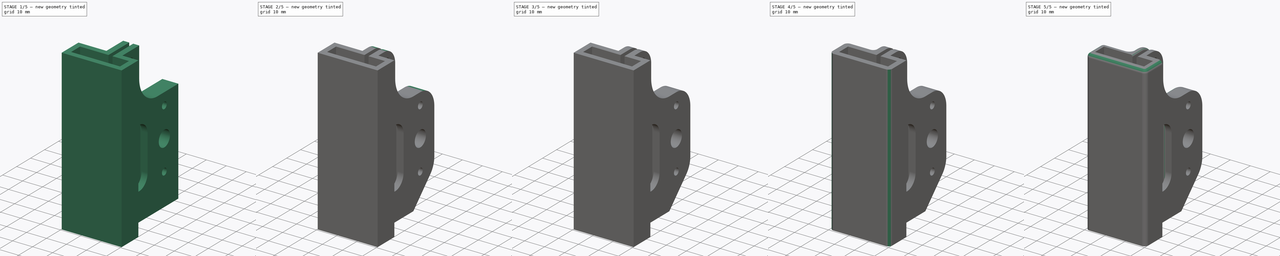
[diagram: build sequence overview — one tinted view per stage of 5, left to right]
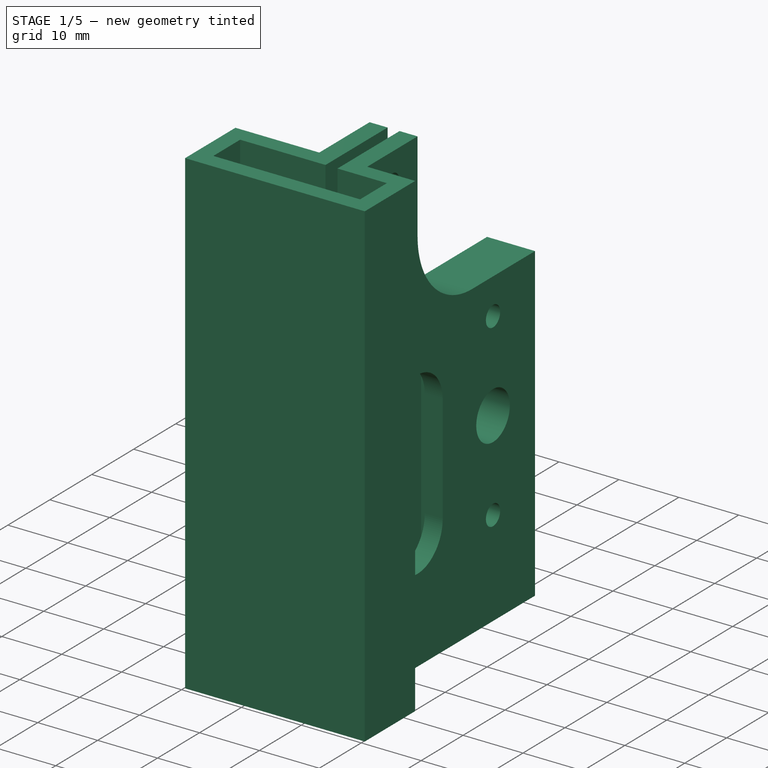
[diagram: stage 1 of 5 — iso view after this stage's code; geometry added in this stage tinted green]
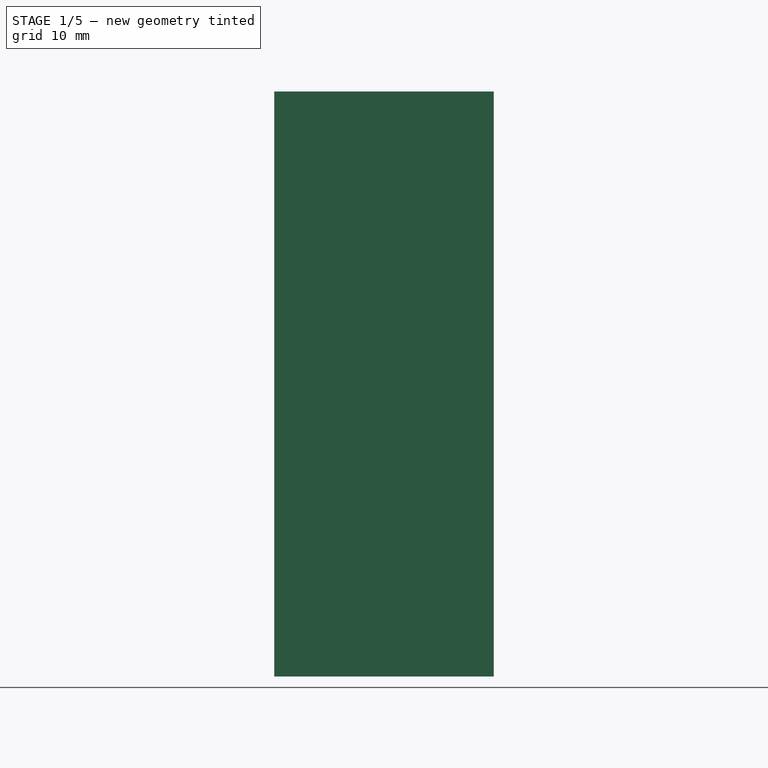
[diagram: stage 1 of 5 — front view after this stage's code; geometry added in this stage tinted green]
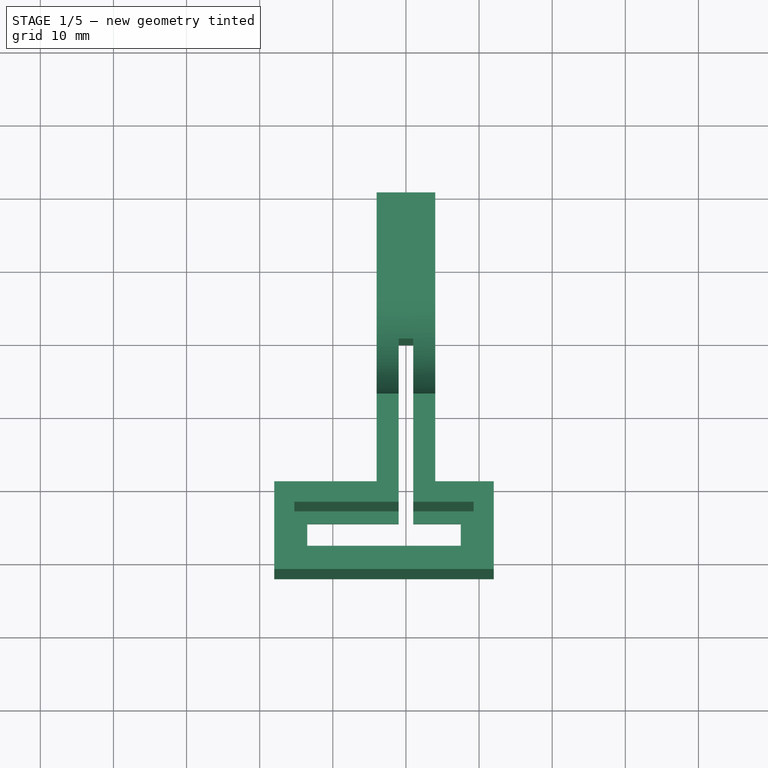
[diagram: stage 1 of 5 — top view after this stage's code; geometry added in this stage tinted green]
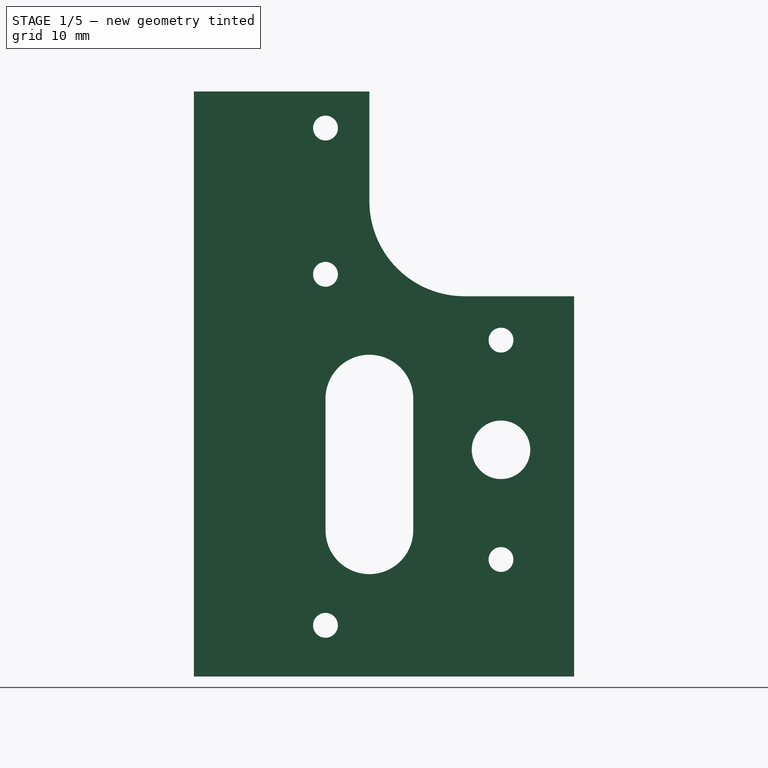
[diagram: stage 1 of 5 — right view after this stage's code; geometry added in this stage tinted green]
FCSTD DOCUMENT  (FreeCAD 0.16R6706 (Git))
Label: LowerKneeV2
License: All rights reserved
LicenseURL: http://en.wikipedia.org/wiki/All_rights_reserved
objects: PartDesign::Fillet×13, PartDesign::Chamfer×6, Sketcher::SketchObject×5, PartDesign::Pocket×4, PartDesign::Pad×1
note: 34 computed .brp shape members not serialized (recipe doc carries the construction recipe); baked Part::Feature solids carry a one-line shape summary decoded from their .brp

FEATURE [Sketcher::SketchObject] Sketch
  sketch-geometry (22):
    g0: LineSegment [constr] StartX=1 StartY=-2.9 StartZ=0 EndX=1 EndY=14 EndZ=0
    g1: LineSegment [constr] StartX=1 StartY=14 StartZ=0 EndX=-1 EndY=14 EndZ=0
    g2: LineSegment [constr] StartX=-1 StartY=14 StartZ=0 EndX=-1 EndY=-2.9 EndZ=0
    g3: LineSegment [constr] StartX=-1 StartY=-2.9 StartZ=0 EndX=-15.2 EndY=-2.9 EndZ=0
    g4: LineSegment [constr] StartX=-15.2 StartY=-2.9 StartZ=0 EndX=-15.2 EndY=-9.1 EndZ=0
    g5: LineSegment [constr] StartX=-15.2 StartY=-9.1 StartZ=0 EndX=9.2 EndY=-9.1 EndZ=0
    g6: LineSegment [constr] StartX=9.2 StartY=-9.1 StartZ=0 EndX=9.2 EndY=-2.9 EndZ=0
    g7: LineSegment [constr] StartX=9.2 StartY=-2.9 StartZ=0 EndX=1 EndY=-2.9 EndZ=0
    g8: LineSegment StartX=-4 StartY=0 StartZ=0 EndX=-4 EndY=40 EndZ=0
    g9: LineSegment StartX=4 StartY=18 StartZ=0 EndX=4 EndY=0 EndZ=0
    g10: LineSegment StartX=4 StartY=0 StartZ=0 EndX=12 EndY=0 EndZ=0
    g11: LineSegment StartX=12 StartY=0 StartZ=0 EndX=12 EndY=-12 EndZ=0
    g12: LineSegment StartX=12 StartY=-12 StartZ=0 EndX=-18 EndY=-12 EndZ=0
    g13: LineSegment StartX=-18 StartY=-12 StartZ=0 EndX=-18 EndY=0 EndZ=0
    g14: LineSegment StartX=-18 StartY=0 StartZ=0 EndX=-4 EndY=0 EndZ=0
    g15: LineSegment StartX=4 StartY=18 StartZ=0 EndX=4 EndY=40 EndZ=0
    g16: LineSegment StartX=4 StartY=40 StartZ=0 EndX=-4 EndY=40 EndZ=0
    g17: LineSegment [constr] StartX=-1 StartY=-2.9 StartZ=0 EndX=1 EndY=-2.9 EndZ=0
    g18: LineSegment [constr] StartX=4 StartY=0 StartZ=0 EndX=-4 EndY=0 EndZ=0
    g19: GeomPoint [constr] X=-3 Y=-6 Z=0
    g20: LineSegment [constr] StartX=-4 StartY=30 StartZ=0 EndX=4 EndY=30 EndZ=0
    g21: LineSegment [constr] StartX=-4 StartY=6 StartZ=0 EndX=4 EndY=6 EndZ=0
  constraints (67):
    c: Vertical(g0)
    c: Coincident(g0,g1)
    c: Horizontal(g1)
    c: Coincident(g1,g2)
    c: Vertical(g2)
    c: Coincident(g2,g3)
    c: Coincident(g3,g4)
    c: Vertical(g4)
    c: Coincident(g4,g5)
    c: Horizontal(g5)
    c: Coincident(g5,g6)
    c: Vertical(g6)
    c: Coincident(g6,g7)
    c: Coincident(g7,g0)
    c: Horizontal(g7)
    c: Horizontal(g3)
    c: Vertical(g8)
    c: Vertical(g9)
    c: Coincident(g9,g10)
    c: Horizontal(g10)
    c: Coincident(g10,g11)
    c: Vertical(g11)
    c: Coincident(g11,g12)
    c: Horizontal(g12)
    c: Coincident(g12,g13)
    c: Vertical(g13)
    c: Coincident(g13,g14)
    c: Horizontal(g14)
    c: Coincident(g8,g14)
    c: Vertical(g15)
    c: Coincident(g15,g16)
    c: Horizontal(g16)
    c: Coincident(g16,g8)
    c: Coincident(g17,g0)
    c: Horizontal(g17)
    c: Coincident(g18,g9)
    c: Coincident(g18,g8)
    c: Horizontal(g18)
    c: DistanceY(g11,g10) = 12
    c: DistanceX(g4,g5) = 24.4
    c: Coincident(g2,g17)
    c: Symmetric(g4,g6,g19)
    c: Symmetric(g12,g10,g19)
    c: DistanceY(g4,g3) = 6.2
    c: DistanceX(g2,g0) = 2
    c: DistanceX(g12,g11) = 30
    c: Symmetric(g2,g0,g-2)
    c: Symmetric(g8,g9,g-2)
    c: DistanceY(g0,g9) = 4
    c: DistanceX(g0,g9) = 3
    c: PointOnObject(g20,g8)
    c: Horizontal(g20)
    c: DistanceY(g8,g20) = 30
    c: PointOnObject(g13,g-1)
    c: DistanceY(g20,g8) = 10
    c: PointOnObject(g21,g8)
    c: Horizontal(g21)
    c: DistanceY(g8,g21) = 6
    c: DistanceY(g21,g1) = 8
    c: DistanceX(g8,g15) = 8
    c: PointOnObject(g20,g15)
    c: DistanceX(g13,g8) = 14
    c: PointOnObject(g21,g9)
    c: DistanceY(g9,g20) = 12
    c: DistanceX(g8,g9) = 8
    c: Coincident(g15,g9)
    c: DistanceX(g9,g10) = 8
FEATURE [PartDesign::Pad] Pad
  Length = 80
  Length2 = 100
  Sketch = -> Sketch
  Type = 0
FEATURE [Sketcher::SketchObject] Sketch001  label="RodHole"
  Placement = pos=(0,0,80) rot=(0,0,1;0rad)
  Support = -> Pad [Face11]
  sketch-geometry (22):
    g0: LineSegment StartX=1 StartY=-2.8 StartZ=0 EndX=1 EndY=20 EndZ=0
    g1: LineSegment StartX=1 StartY=20 StartZ=0 EndX=-1 EndY=20 EndZ=0
    g2: LineSegment StartX=-1 StartY=20 StartZ=0 EndX=-1 EndY=-2.8 EndZ=0
    g3: LineSegment StartX=-1 StartY=-2.8 StartZ=0 EndX=-15.25 EndY=-2.8 EndZ=0
    g4: LineSegment StartX=-15.25 StartY=-2.8 StartZ=0 EndX=-15.25 EndY=-9.2 EndZ=0
    g5: LineSegment StartX=-15.25 StartY=-9.2 StartZ=0 EndX=9.25 EndY=-9.2 EndZ=0
    g6: LineSegment StartX=9.25 StartY=-9.2 StartZ=0 EndX=9.25 EndY=-2.8 EndZ=0
    g7: LineSegment StartX=9.25 StartY=-2.8 StartZ=0 EndX=1 EndY=-2.8 EndZ=0
    g8: LineSegment [constr] StartX=-4 StartY=0 StartZ=0 EndX=-4 EndY=40 EndZ=0
    g9: LineSegment [constr] StartX=4 StartY=24 StartZ=0 EndX=4 EndY=0 EndZ=0
    g10: LineSegment [constr] StartX=4 StartY=0 StartZ=0 EndX=12 EndY=0 EndZ=0
    g11: LineSegment [constr] StartX=12 StartY=0 StartZ=0 EndX=12 EndY=-12 EndZ=0
    g12: LineSegment [constr] StartX=12 StartY=-12 StartZ=0 EndX=-18 EndY=-12 EndZ=0
    g13: LineSegment [constr] StartX=-18 StartY=-12 StartZ=0 EndX=-18 EndY=0 EndZ=0
    g14: LineSegment [constr] StartX=-18 StartY=0 StartZ=0 EndX=-4 EndY=0 EndZ=0
    g15: LineSegment [constr] StartX=4 StartY=24 StartZ=0 EndX=4 EndY=40 EndZ=0
    g16: LineSegment [constr] StartX=4 StartY=40 StartZ=0 EndX=-4 EndY=40 EndZ=0
    g17: LineSegment [constr] StartX=-1 StartY=-2.8 StartZ=0 EndX=1 EndY=-2.8 EndZ=0
    g18: LineSegment [constr] StartX=4 StartY=0 StartZ=0 EndX=-4 EndY=0 EndZ=0
    g19: GeomPoint [constr] X=-3 Y=-6 Z=0
    g20: LineSegment [constr] StartX=-4 StartY=30 StartZ=0 EndX=4 EndY=30 EndZ=0
    g21: LineSegment [constr] StartX=-4 StartY=6 StartZ=0 EndX=4 EndY=6 EndZ=0
  constraints (67):
    c: Vertical(g0)
    c: Coincident(g0,g1)
    c: Horizontal(g1)
    c: Coincident(g1,g2)
    c: Vertical(g2)
    c: Coincident(g2,g3)
    c: Coincident(g3,g4)
    c: Vertical(g4)
    c: Coincident(g4,g5)
    c: Horizontal(g5)
    c: Coincident(g5,g6)
    c: Vertical(g6)
    c: Coincident(g6,g7)
    c: Coincident(g7,g0)
    c: Horizontal(g7)
    c: Horizontal(g3)
    c: Vertical(g8)
    c: Vertical(g9)
    c: Coincident(g9,g10)
    c: Horizontal(g10)
    c: Coincident(g10,g11)
    c: Vertical(g11)
    c: Coincident(g11,g12)
    c: Horizontal(g12)
    c: Coincident(g12,g13)
    c: Vertical(g13)
    c: Coincident(g13,g14)
    c: Horizontal(g14)
    c: Coincident(g8,g14)
    c: Vertical(g15)
    c: Coincident(g15,g16)
    c: Horizontal(g16)
    c: Coincident(g16,g8)
    c: Coincident(g17,g0)
    c: Horizontal(g17)
    c: Coincident(g18,g9)
    c: Coincident(g18,g8)
    c: Horizontal(g18)
    c: DistanceY(g11,g10) = 12
    c: DistanceX(g4,g5) = 24.5
    c: Coincident(g2,g17)
    c: Symmetric(g4,g6,g19)
    c: Symmetric(g12,g10,g19)
    c: DistanceY(g4,g3) = 6.4
    c: DistanceX(g2,g0) = 2
    c: DistanceX(g12,g11) = 30
    c: Symmetric(g2,g0,g-2)
    c: Symmetric(g8,g9,g-2)
    c: DistanceY(g0,g9) = 4
    c: DistanceX(g0,g9) = 3
    c: PointOnObject(g20,g8)
    c: Horizontal(g20)
    c: DistanceY(g8,g20) = 30
    c: PointOnObject(g13,g-1)
    c: DistanceY(g20,g8) = 10
    c: PointOnObject(g21,g8)
    c: Horizontal(g21)
    c: DistanceY(g8,g21) = 6
    c: DistanceY(g21,g1) = 14
    c: DistanceX(g8,g15) = 8
    c: PointOnObject(g20,g15)
    c: DistanceY(g19,g-1) = 6
    c: DistanceX(g-1,g19) = -3
    c: DistanceX(g13,g8) = 14
    c: DistanceX(g9,g10) = 8
    c: Coincident(g15,g9)
    c: PointOnObject(g21,g9)
FEATURE [PartDesign::Pocket] Pocket
  Length = 76
  Sketch = -> Sketch001
  Type = 0
FEATURE [Sketcher::SketchObject] Sketch002  label="MountingHoles"
  Placement = pos=(-4,0,0) rot=(0.57735,-0.57735,-0.57735;2.0944rad)
  Support = -> Pocket [Face11]
  sketch-geometry (11):
    g0: LineSegment [constr] StartX=-6 StartY=80 StartZ=0 EndX=-6 EndY=0 EndZ=0
    g1: Circle CenterX=-6 CenterY=7 CenterZ=0 NormalX=0 NormalY=0 NormalZ=1 Radius=1.7
    g2: Circle CenterX=-6 CenterY=55 CenterZ=0 NormalX=0 NormalY=0 NormalZ=1 Radius=1.7
    g3: Circle CenterX=-6 CenterY=75 CenterZ=0 NormalX=0 NormalY=0 NormalZ=1 Radius=1.7
    g4: LineSegment [constr] StartX=0 StartY=31 StartZ=0 EndX=-30 EndY=31 EndZ=0
    g5: LineSegment [constr] StartX=-30 StartY=46 StartZ=0 EndX=-30 EndY=16 EndZ=0
    g6: Circle CenterX=-30 CenterY=46 CenterZ=0 NormalX=0 NormalY=0 NormalZ=1 Radius=1.7
    g7: Circle CenterX=-30 CenterY=16 CenterZ=0 NormalX=0 NormalY=0 NormalZ=1 Radius=1.7
    g8: LineSegment [constr] StartX=-30 StartY=46 StartZ=0 EndX=-30 EndY=71 EndZ=0
    g9: Circle [constr] CenterX=-30 CenterY=71 CenterZ=0 NormalX=0 NormalY=0 NormalZ=1 Radius=3.2
    g10: Circle CenterX=-30 CenterY=31 CenterZ=0 NormalX=0 NormalY=0 NormalZ=1 Radius=4
  constraints (33):
    c: PointOnObject(g0,g-1)
    c: Vertical(g0)
    c: DistanceX(g0,g-1) = 6
    c: DistanceY(g0,g0) = 80
    c: PointOnObject(g1,g0)
    c: PointOnObject(g2,g0)
    c: PointOnObject(g3,g0)
    c: Radius(g1) = 1.7
    c: Equal(g1,g2)
    c: Equal(g1,g3)
    c: DistanceY(g2,g3) = 20
    c: PointOnObject(g4,g-2)
    c: Horizontal(g4)
    c: Symmetric(g1,g2,g4)
    c: DistanceY(g1,g2) = 48
    c: DistanceY(g-1,g1) = 7
    c: DistanceX(g4,g4) = 30
    c: Vertical(g5)
    c: PointOnObject(g4,g5)
    c: DistanceY(g5,g5) = 30
    c: Symmetric(g5,g5,g4)
    c: Coincident(g6,g5)
    c: Coincident(g7,g5)
    c: Equal(g2,g6)
    c: Equal(g6,g7)
    c: Vertical(g8)
    c: Coincident(g9,g8)
    c: Coincident(g8,g5)
    c: DistanceY(g4,g8) = 40
    c: Radius(g9) = 3.2
    c: Coincident(g10,g4)
    c: Radius(g10) = 4
    c: DistanceY(g-1,g8) = 71
FEATURE [PartDesign::Pocket] Pocket001
  Length = 5
  Sketch = -> Sketch002
  Type = 1
FEATURE [Sketcher::SketchObject] Sketch003
  Placement = pos=(0,0,0) rot=(1,0,0;3.14159rad)
  Support = -> Pocket001 [Face3]
  sketch-geometry (10):
    g0: LineSegment StartX=-13.5 StartY=7.5 StartZ=0 EndX=7.5 EndY=7.5 EndZ=0
    g1: LineSegment StartX=7.5 StartY=7.5 StartZ=0 EndX=7.5 EndY=4.5 EndZ=0
    g2: LineSegment StartX=7.5 StartY=4.5 StartZ=0 EndX=1 EndY=4.5 EndZ=0
    g3: LineSegment StartX=-13.5 StartY=4.5 StartZ=0 EndX=-13.5 EndY=7.5 EndZ=0
    g4: GeomPoint [constr] X=-3 Y=6 Z=0
    g5: LineSegment [constr] StartX=-1 StartY=4.5 StartZ=0 EndX=1 EndY=4.5 EndZ=0
    g6: LineSegment StartX=1 StartY=4.5 StartZ=0 EndX=1 EndY=-20 EndZ=0
    g7: LineSegment StartX=1 StartY=-20 StartZ=0 EndX=-1 EndY=-20 EndZ=0
    g8: LineSegment StartX=-1 StartY=-20 StartZ=0 EndX=-1 EndY=4.5 EndZ=0
    g9: LineSegment StartX=-1 StartY=4.5 StartZ=0 EndX=-13.5 EndY=4.5 EndZ=0
  constraints (28):
    c: Coincident(g0,g1)
    c: Coincident(g1,g2)
    c: Coincident(g9,g3)
    c: Coincident(g3,g0)
    c: Horizontal(g0)
    c: Horizontal(g2)
    c: Vertical(g1)
    c: Vertical(g3)
    c: DistanceY(g1,g0) = 3
    c: DistanceX(g0,g0) = 21
    c: DistanceX(g-1,g4) = -3
    c: DistanceY(g-1,g4) = 6
    c: Symmetric(g9,g0,g4)
    c: Coincident(g5,g6)
    c: Coincident(g6,g7)
    c: Coincident(g7,g8)
    c: Coincident(g8,g5)
    c: Horizontal(g5)
    c: Horizontal(g7)
    c: Vertical(g6)
    c: Vertical(g8)
    c: PointOnObject(g2,g6)
    c: PointOnObject(g9,g8)
    c: Tangent(g2,g9)
    c: Coincident(g2,g5)
    c: Symmetric(g6,g7,g-2)
    c: DistanceX(g7,g6) = 2
    c: DistanceY(g6,g-1) = 20
FEATURE [PartDesign::Pocket] Pocket002
  Length = 5
  Sketch = -> Sketch003
  Type = 0
FEATURE [Sketcher::SketchObject] Sketch004
  Placement = pos=(4,0,0) rot=(0.57735,0.57735,0.57735;2.0944rad)
  Support = -> Pocket002 [Face1]
  sketch-geometry (9):
    g0: LineSegment StartX=12 StartY=85 StartZ=0 EndX=45 EndY=85 EndZ=0
    g1: LineSegment StartX=45 StartY=85 StartZ=0 EndX=45 EndY=52 EndZ=0
    g2: LineSegment StartX=45 StartY=52 StartZ=0 EndX=25 EndY=52 EndZ=0
    g3: LineSegment StartX=12 StartY=65 StartZ=0 EndX=12 EndY=85 EndZ=0
    g4: ArcOfCircle CenterX=25 CenterY=65 CenterZ=0 NormalX=0 NormalY=0 NormalZ=1 Radius=13 StartAngle=3.14159 EndAngle=4.71239
    g5: ArcOfCircle CenterX=12 CenterY=38 CenterZ=0 NormalX=0 NormalY=0 NormalZ=1 Radius=6 StartAngle=-1e-12 EndAngle=3.14159
    g6: ArcOfCircle CenterX=12 CenterY=20 CenterZ=0 NormalX=0 NormalY=0 NormalZ=1 Radius=6 StartAngle=3.14159 EndAngle=6.28319
    g7: LineSegment StartX=6 StartY=38 StartZ=0 EndX=6 EndY=20 EndZ=0
    g8: LineSegment StartX=18 StartY=38 StartZ=0 EndX=18 EndY=20 EndZ=0
  constraints (24):
    c: Coincident(g0,g1)
    c: Coincident(g1,g2)
    c: Coincident(g3,g0)
    c: Horizontal(g0)
    c: Horizontal(g2)
    c: Vertical(g1)
    c: Vertical(g3)
    c: Tangent(g3,g4) = 1.5708
    c: Tangent(g2,g4) = 1.5708
    c: DistanceX(g-1,g3) = 12
    c: DistanceY(g-1,g3) = 65
    c: DistanceY(g-1,g2) = 52
    c: DistanceX(g-1,g1) = 45
    c: DistanceY(g-1,g0) = 85
    c: Tangent(g5,g8) = 1.5708
    c: Tangent(g5,g7) = -1.5708
    c: Tangent(g7,g6) = -1.5708
    c: Tangent(g8,g6) = 1.5708
    c: Vertical(g7)
    c: Equal(g5,g6)
    c: DistanceX(g6,g6) = 12
    c: DistanceY(g6,g5) = 18
    c: DistanceY(g-1,g6) = 20
    c: DistanceX(g-1,g6) = 12
FEATURE [PartDesign::Pocket] Pocket003
  Length = 5
  Sketch = -> Sketch004
  Type = 1
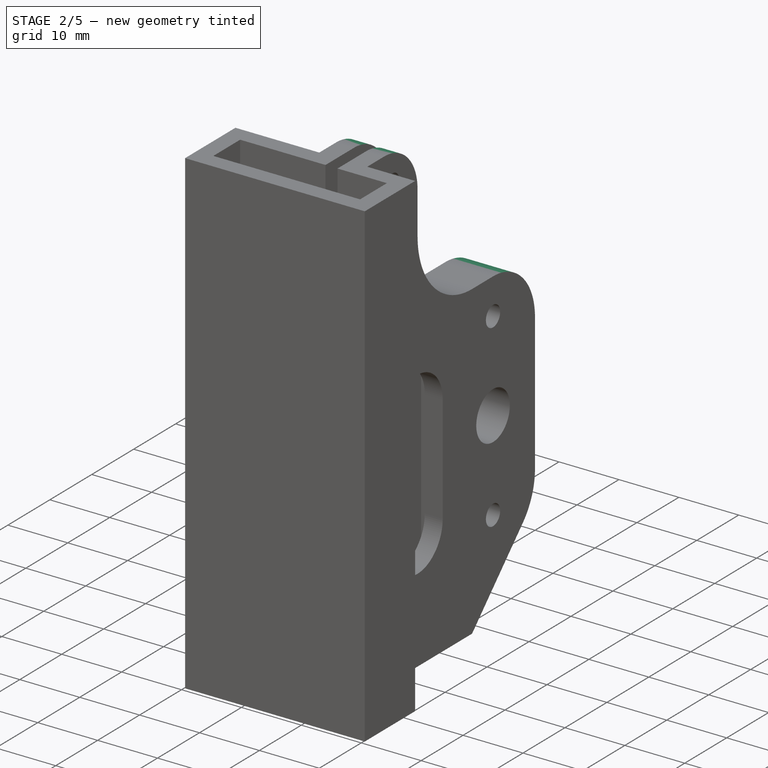
[diagram: stage 2 of 5 — iso view after this stage's code; geometry added in this stage tinted green]
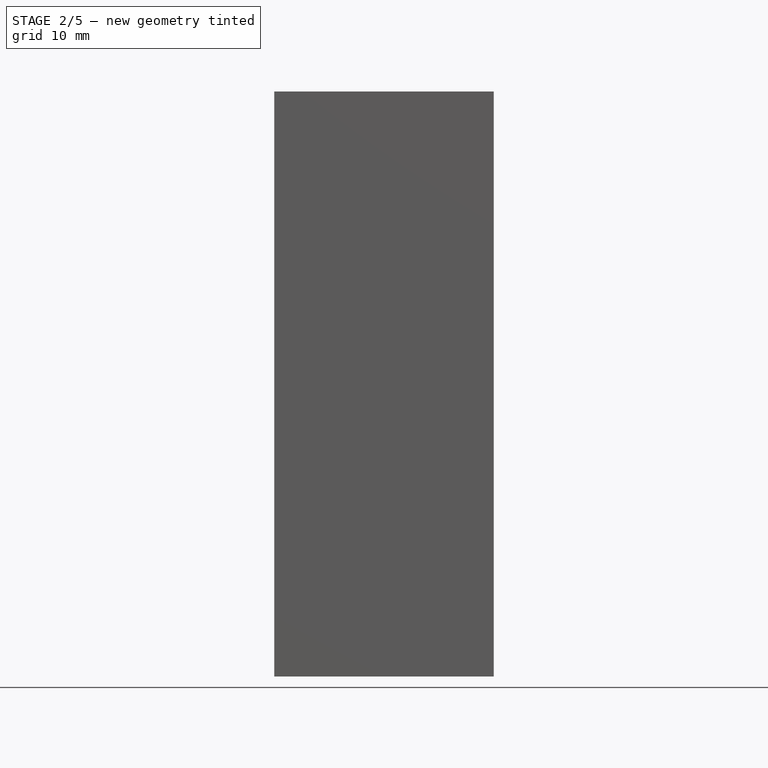
[diagram: stage 2 of 5 — front view after this stage's code; geometry added in this stage tinted green]
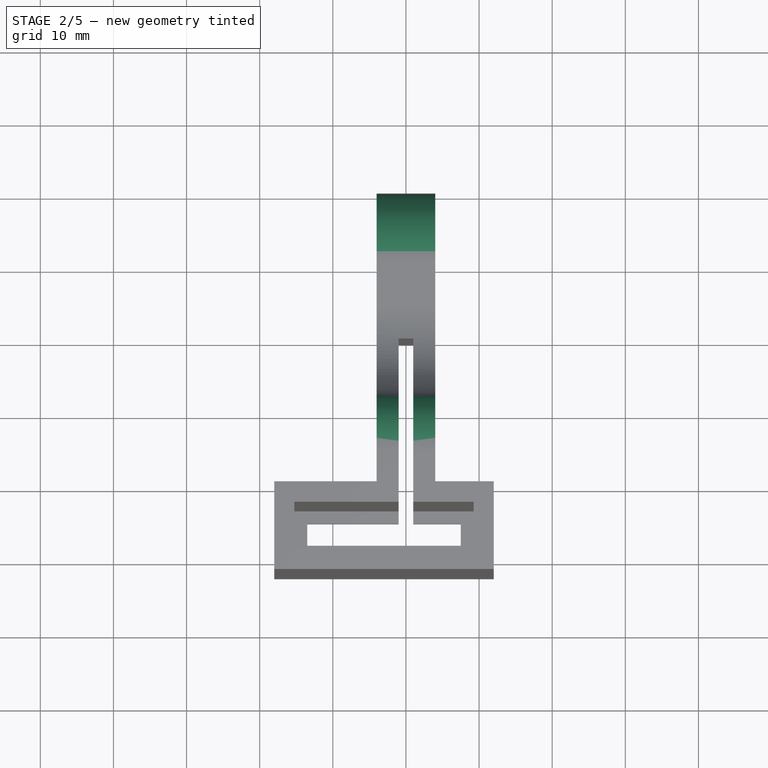
[diagram: stage 2 of 5 — top view after this stage's code; geometry added in this stage tinted green]
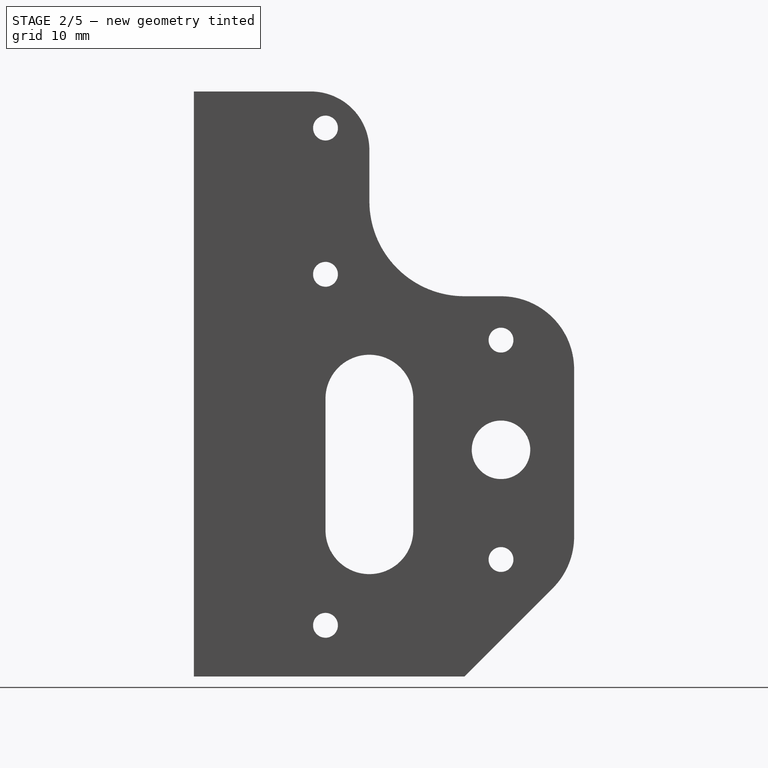
[diagram: stage 2 of 5 — right view after this stage's code; geometry added in this stage tinted green]
FEATURE [PartDesign::Chamfer] Chamfer
  Base = -> Pocket003 [Edge16]
  Size = 15
FEATURE [PartDesign::Fillet] Fillet
  Base = -> Chamfer [Edge28]
  Radius = 10
FEATURE [PartDesign::Fillet] Fillet001
  Base = -> Fillet [Edge34]
  Radius = 10
FEATURE [PartDesign::Fillet] Fillet002
  Base = -> Fillet001 [Edge76]
  Radius = 8
FEATURE [PartDesign::Fillet] Fillet003
  Base = -> Fillet002 [Edge46]
  Radius = 8
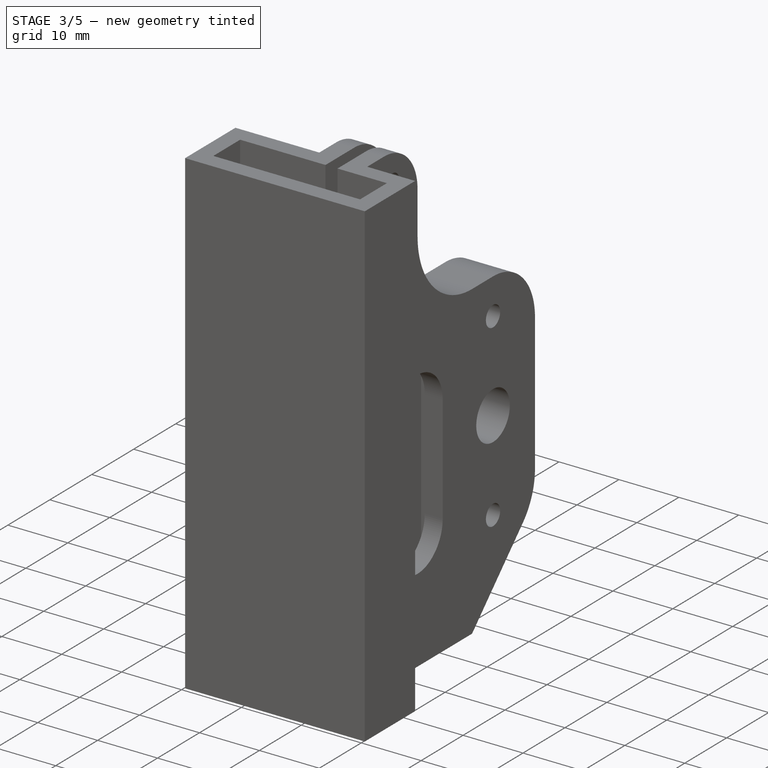
[diagram: stage 3 of 5 — iso view after this stage's code; geometry added in this stage tinted green]
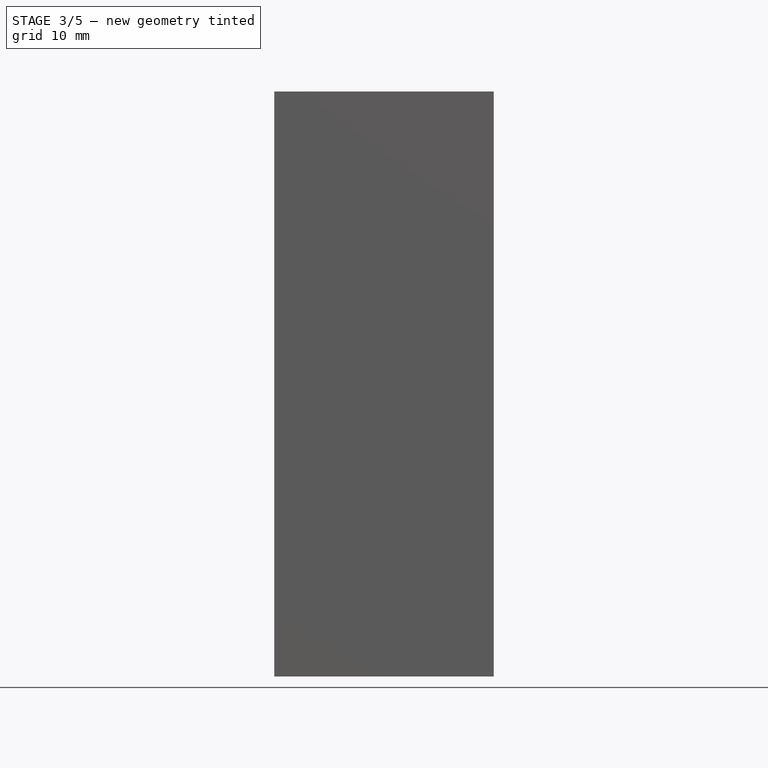
[diagram: stage 3 of 5 — front view after this stage's code; geometry added in this stage tinted green]
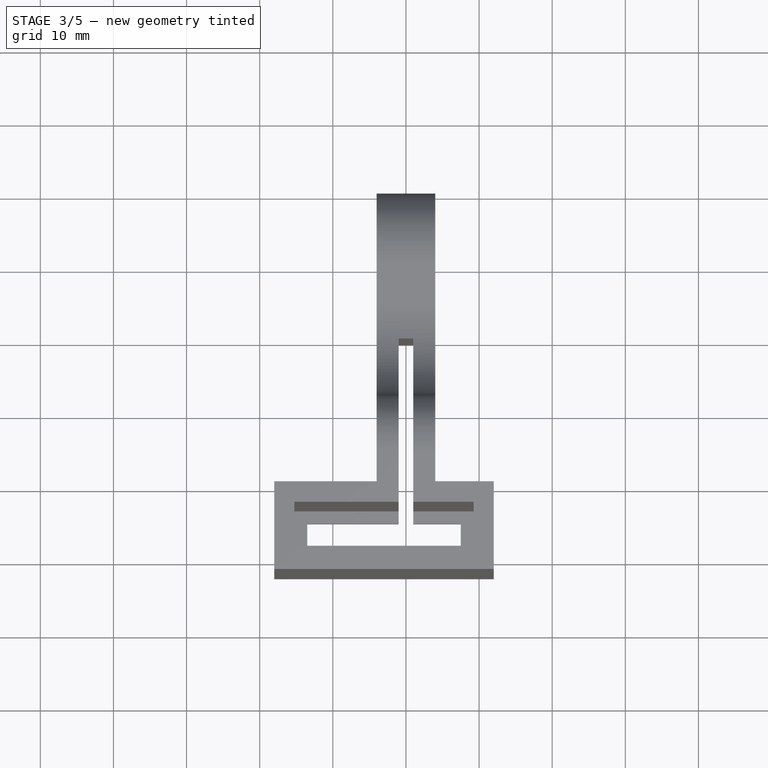
[diagram: stage 3 of 5 — top view after this stage's code; geometry added in this stage tinted green]
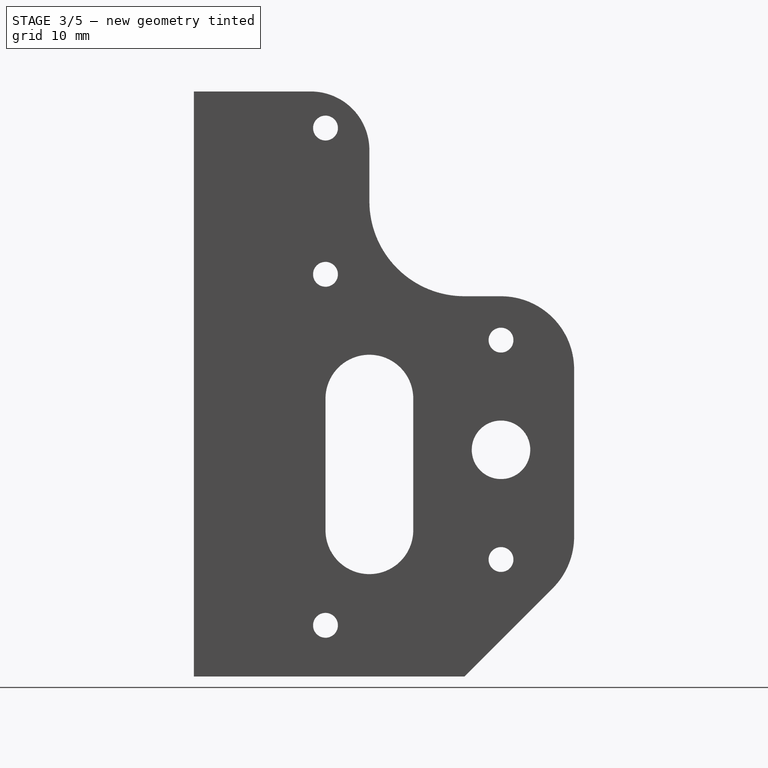
[diagram: stage 3 of 5 — right view after this stage's code; geometry added in this stage tinted green]
FEATURE [PartDesign::Chamfer] Chamfer001
  Base = -> Fillet003 [Edge97]
  Size = 1.7
FEATURE [PartDesign::Chamfer] Chamfer002
  Base = -> Chamfer001 [Edge20]
  Size = 1.7
FEATURE [PartDesign::Chamfer] Chamfer003
  Base = -> Chamfer002 [Edge21]
  Size = 1.7
FEATURE [PartDesign::Chamfer] Chamfer004
  Base = -> Chamfer003 [Edge16]
  Size = 1.7
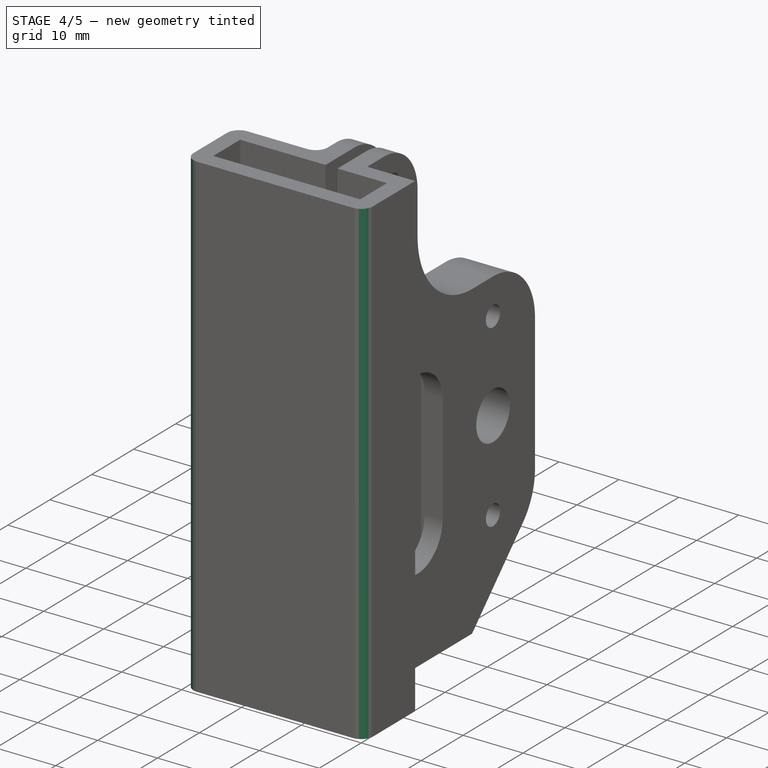
[diagram: stage 4 of 5 — iso view after this stage's code; geometry added in this stage tinted green]
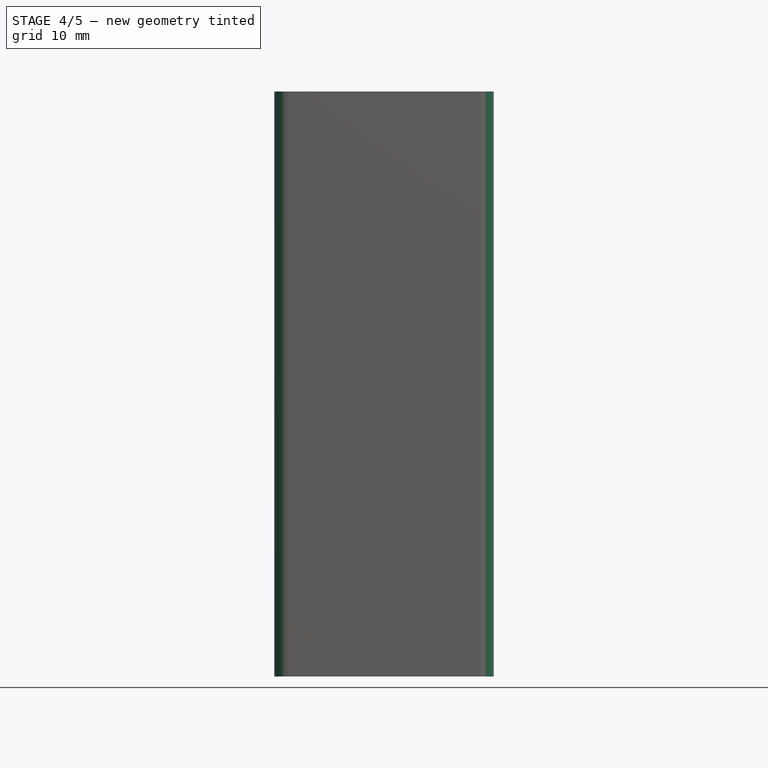
[diagram: stage 4 of 5 — front view after this stage's code; geometry added in this stage tinted green]
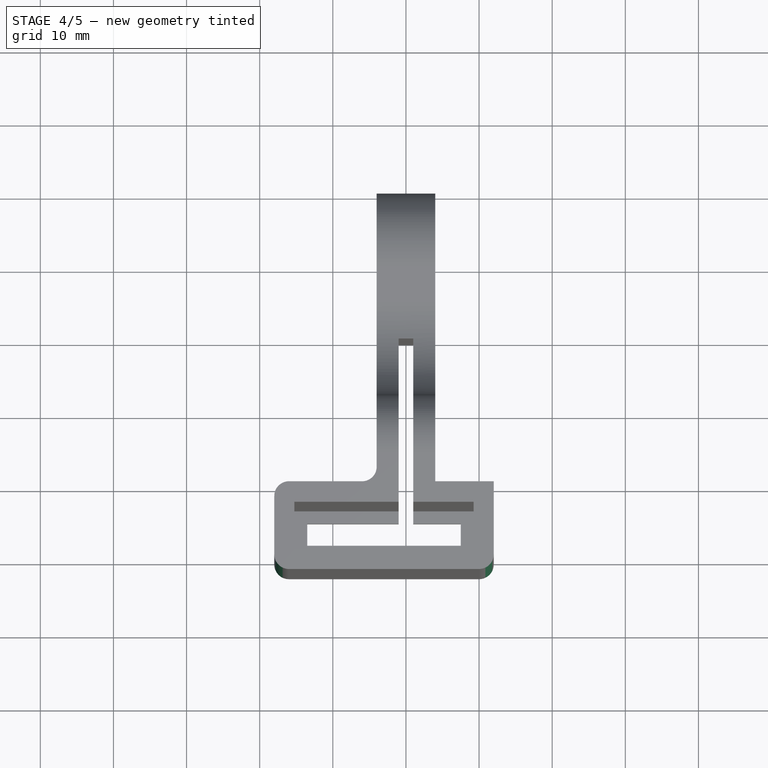
[diagram: stage 4 of 5 — top view after this stage's code; geometry added in this stage tinted green]
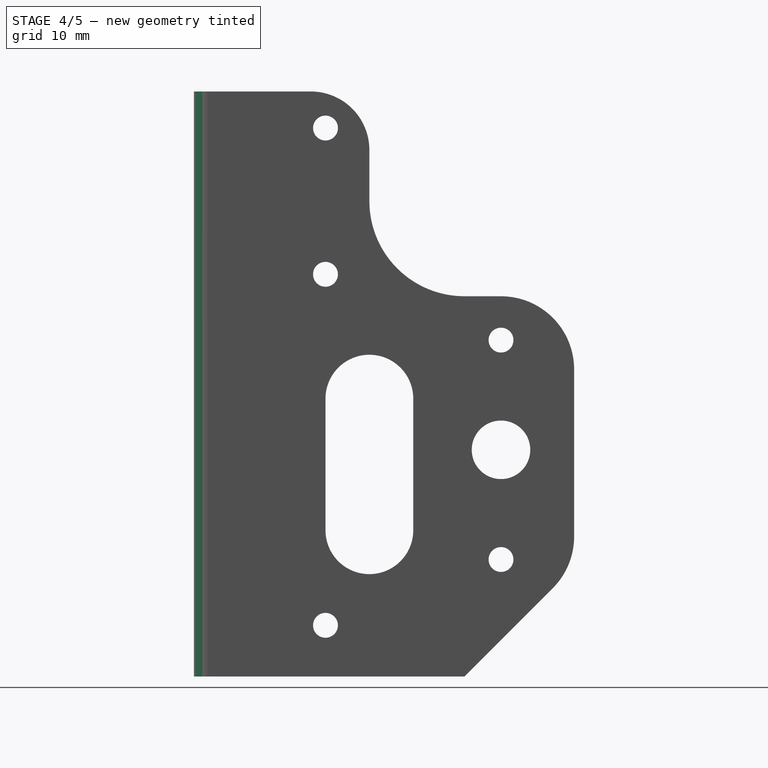
[diagram: stage 4 of 5 — right view after this stage's code; geometry added in this stage tinted green]
FEATURE [PartDesign::Chamfer] Chamfer005
  Base = -> Chamfer004 [Edge16]
  Size = 1.7
FEATURE [PartDesign::Fillet] Fillet004
  Base = -> Chamfer005 [Edge11]
  Radius = 2
FEATURE [PartDesign::Fillet] Fillet005
  Base = -> Fillet004 [Edge96]
  Radius = 2
FEATURE [PartDesign::Fillet] Fillet006
  Base = -> Fillet005 [Edge27]
  Radius = 2
FEATURE [PartDesign::Fillet] Fillet007
  Base = -> Fillet006 [Edge28]
  Radius = 2
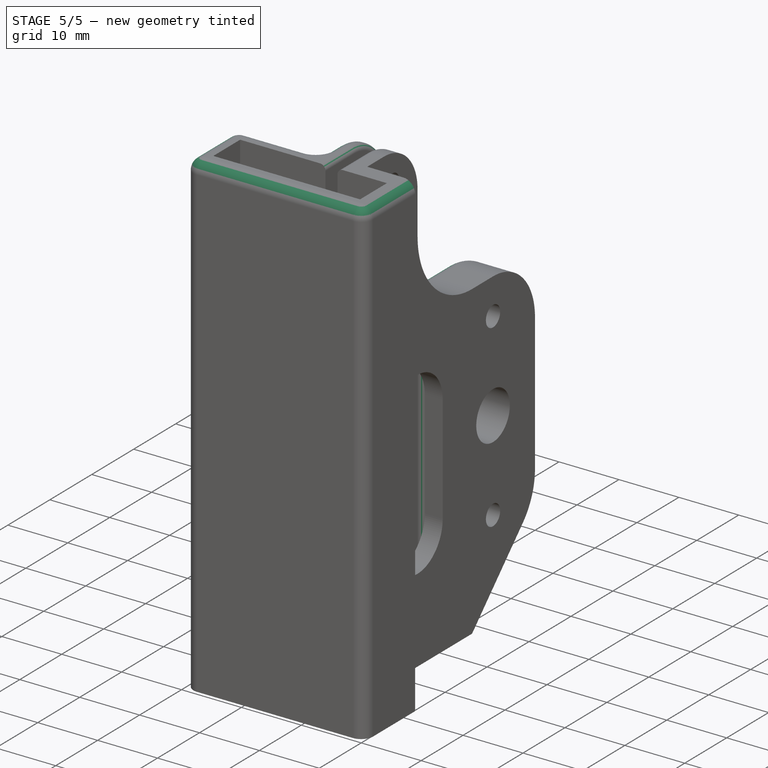
[diagram: stage 5 of 5 — iso view after this stage's code; geometry added in this stage tinted green]
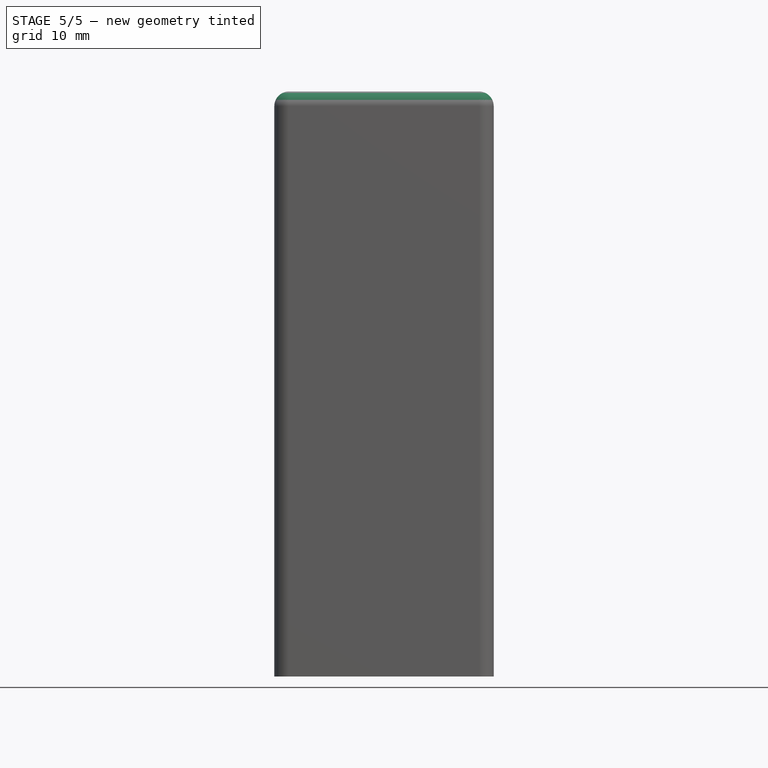
[diagram: stage 5 of 5 — front view after this stage's code; geometry added in this stage tinted green]
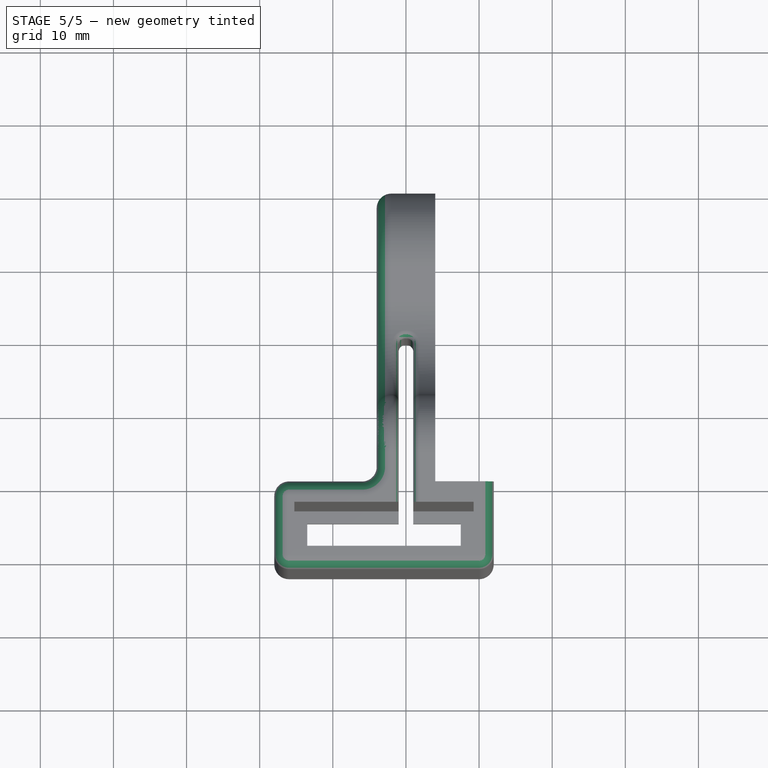
[diagram: stage 5 of 5 — top view after this stage's code; geometry added in this stage tinted green]
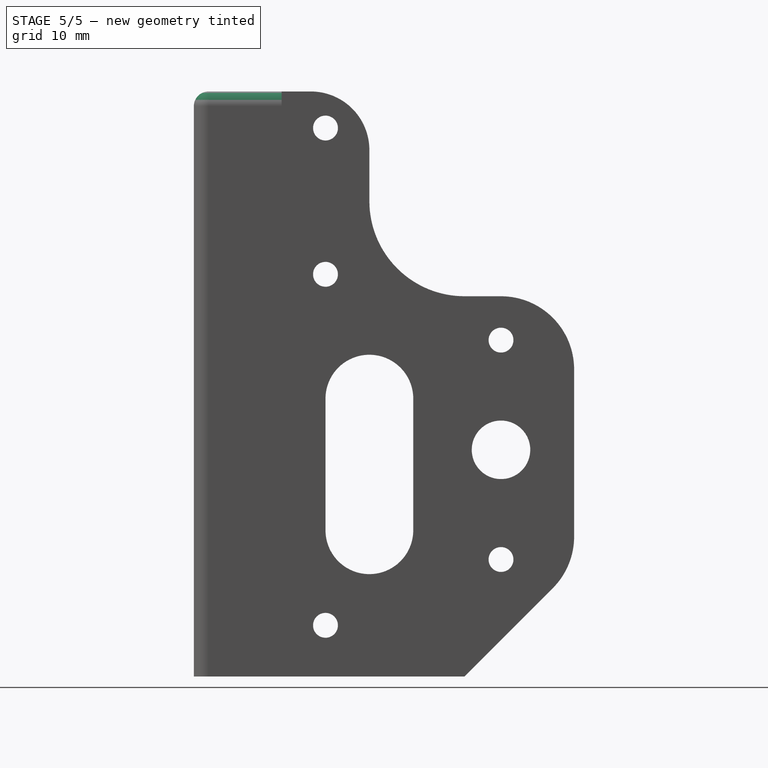
[diagram: stage 5 of 5 — right view after this stage's code; geometry added in this stage tinted green]
FEATURE [PartDesign::Fillet] Fillet008
  Base = -> Fillet007 [Edge73]
  Radius = 2
FEATURE [PartDesign::Fillet] Fillet009
  Base = -> Fillet008 [Edge175]
  Radius = 2
FEATURE [PartDesign::Fillet] Fillet010
  Base = -> Fillet009 [Edge192]
  Radius = 0.9
FEATURE [PartDesign::Fillet] Fillet011
  Base = -> Fillet010 [Edge217]
  Radius = 0.9
FEATURE [PartDesign::Fillet] Fillet012
  Base = -> Fillet011 [Edge188]
  Radius = 0.9
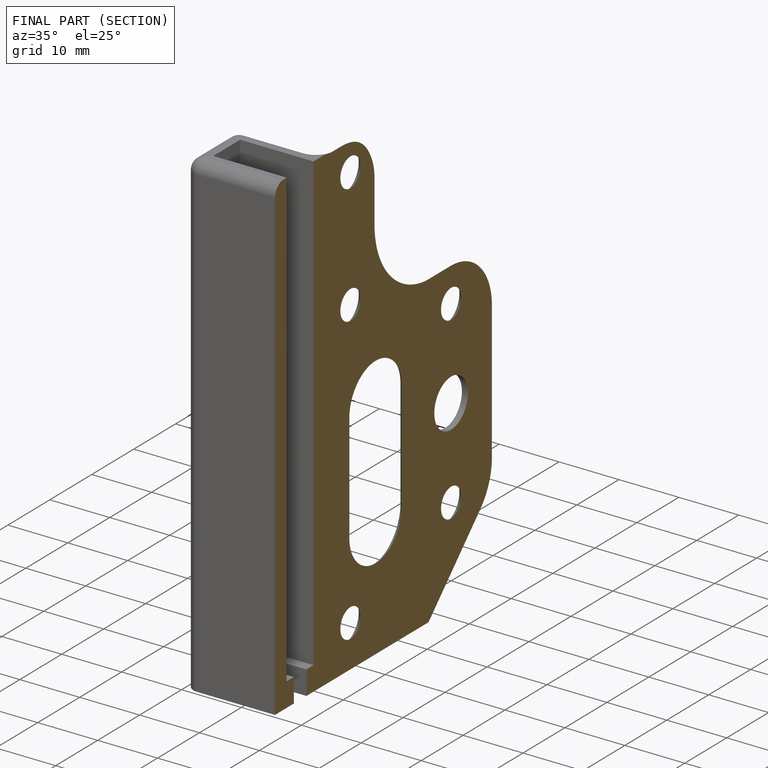
[diagram: finished part — half-section view (interior)]
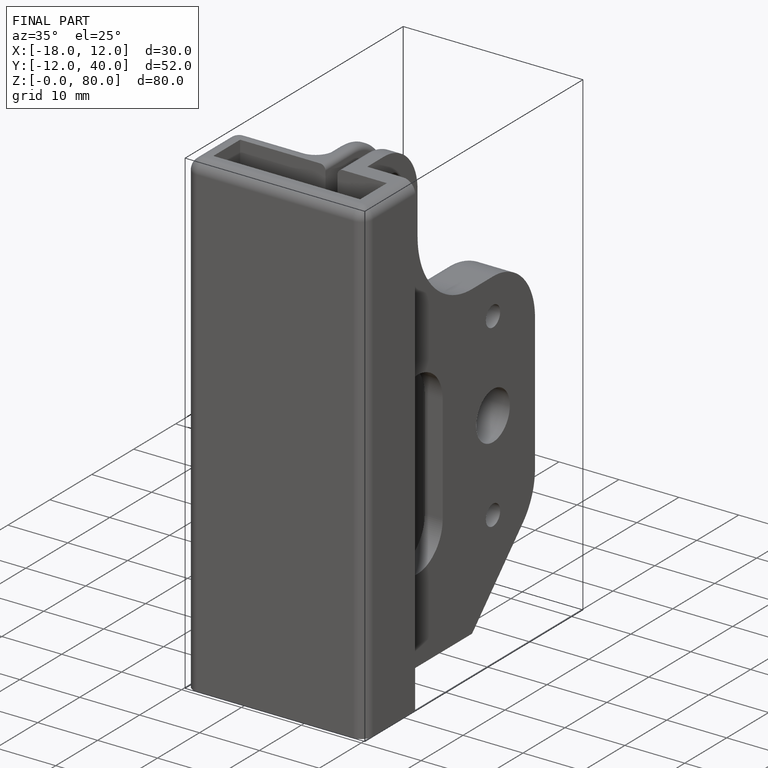
[diagram: finished part — iso view with bounding-box wireframe]
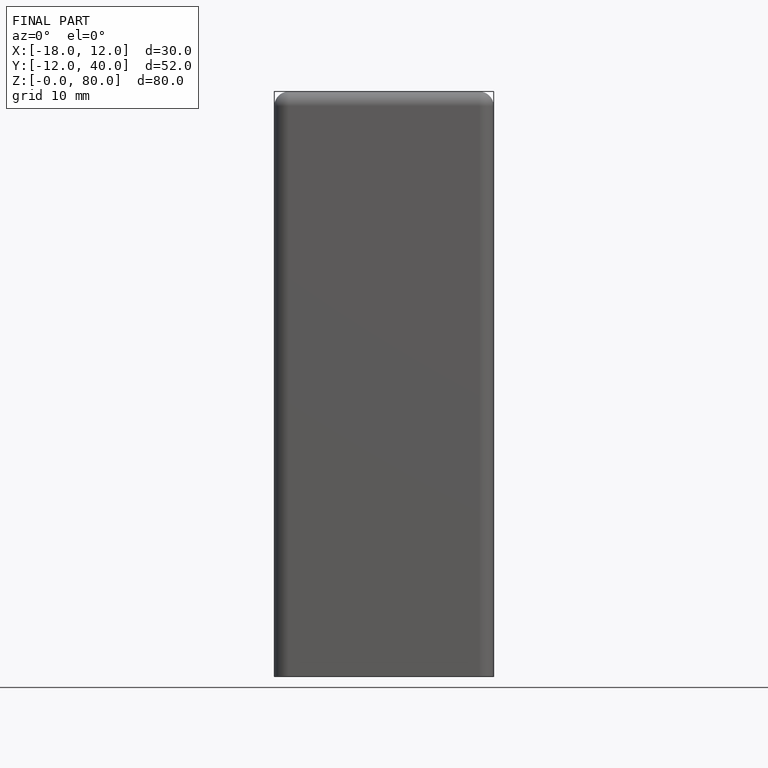
[diagram: finished part — front view with bounding-box wireframe]
